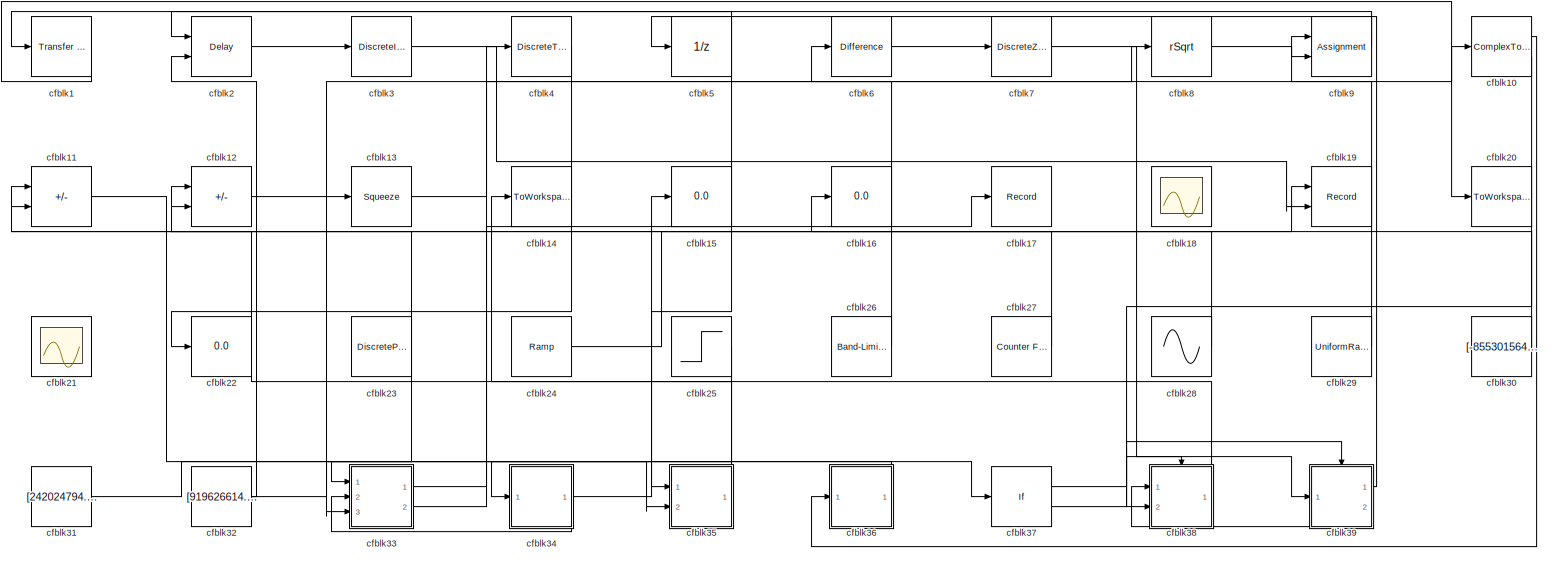
[diagram: root canvas - part 1/1, most of the canvas]
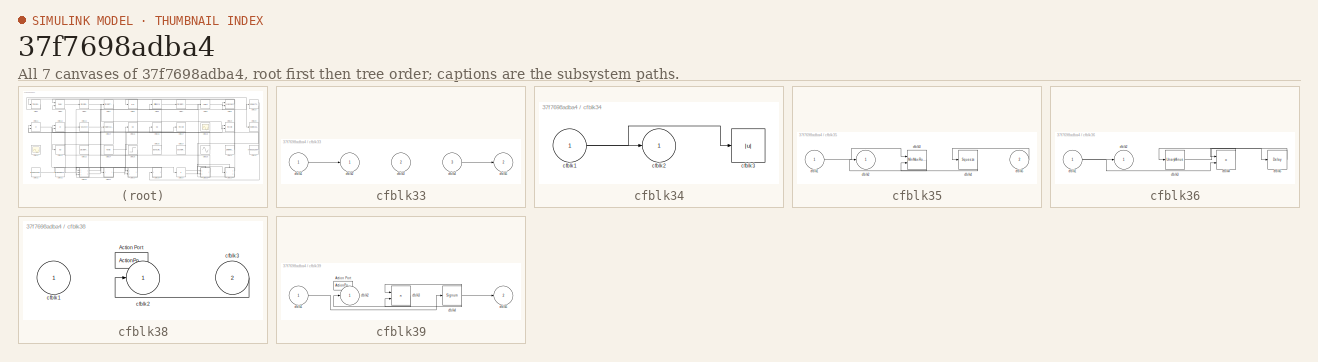
[diagram: thumbnail index - all 7 canvases of the model, root first then tree order]
MODEL slx_37f7698adba4
KIND model
CONFIG AbsTol = auto
CONFIG EnableMultiTasking = off
CONFIG FixedStep = auto
CONFIG MaxStep = auto
CONFIG MinStep = auto
CONFIG RelTol = 1e-3
CONFIG SampleTimeConstraint = Unconstrained
CONFIG SolverName = VariableStepAuto
CONFIG StartTime = 0.0
CONFIG StopTime = 10.0
BLOCK [Reference] cfblk1  REF=simulink/Discrete/Transfer Fcn
Real Zero
  Ports = [1, 1]
  SourceBlock = simulink/Discrete/Transfer Fcn\nReal Zero
  SourceProductBaseCode = SL
  SourceType = Transfer Fcn Real Zero
BLOCK [ComplexToRealImag] cfblk10
  Ports = [1, 2]
BLOCK [Sum] cfblk11
  IconShape = rectangular
  Inputs = -+
  Ports = [2, 1]
BLOCK [Sum] cfblk12
  IconShape = rectangular
  Inputs = +-
  Ports = [2, 1]
BLOCK [Squeeze] cfblk13
BLOCK [ToWorkspace] cfblk14
  FixptAsFi = on
  MaxDataPoints = inf
  Ports = [1]
  SampleTime = -1
  SaveFormat = Timeseries
  VariableName = gdzipip
BLOCK [Display] cfblk15
  Decimation = 1
  Ports = [1]
BLOCK [Display] cfblk16
  Decimation = 1
  Ports = [1]
BLOCK [Record] cfblk17
  FileSettingsInternal = {"entries":[{"content":{"excelSettings":{"content":{},"type":"Streamout.ExcelSettings"}},"type":"Streamout.FileSettingStorage","uuid":"e0210236-c923-4f10-9e11-b856d1107aa3"}],"packageUris":["http://schema.mathworks.com/mf0/streamout_blocks/R2020a"],"version":"1.0"}
  Ports = [1]
  SignalsInternal = {"entries":[{"content":{"signals":[{"content":{"blockPath":["sampleModel120/cfblk17"],"channel":[],"dimensions":[1],"domain":"sampleModel120/cfblk17","lineColor":"#7e2f8e","plots":[1],"port":1,"sid":[""],"signalID":4200,"signalName":"cfblk33:2"},"type":"RecordBlkView.Signal","uuid":"89cdf700-71f4-44c4-b849-b03ae17e177f"}]},"type":"RecordBlkView.InputSignals","uuid":"d4e2e50f-ae13-4356-993b-0258d38...<+99ch>
  VisualizationBindings = {"sparklinesplugin":{"info":[{"bindingParametersList":[],"subplotID":1}]}}
BLOCK [Scope] cfblk18
  Floating = on
  NumInputPorts = 1
  Ports = []
BLOCK [Record] cfblk19
  CompatibilityTag = XY
  FileSettingsInternal = {"entries":[{"content":{"excelSettings":{"content":{},"type":"Streamout.ExcelSettings"}},"type":"Streamout.FileSettingStorage","uuid":"8366a3cd-7951-4da1-9c24-9775e92245a2"}],"packageUris":["http://schema.mathworks.com/mf0/streamout_blocks/R2020a"],"version":"1.0"}
  Layout = [1 1]
  Ports = [2]
  SignalsInternal = {"entries":[{"content":{"signals":[{"content":{"blockPath":["sampleModel120/cfblk19"],"channel":[],"dimensions":[1],"domain":"sampleModel120/cfblk19","lineColor":"#a2142f","plots":[1],"port":1,"sid":[""],"signalID":4204,"signalName":"cfblk24"},"type":"RecordBlkView.Signal","uuid":"4cfc79fe-18ae-4409-b2c0-2dcb3a73f501"},{"content":{"blockPath":["sampleModel120/cfblk19"],"channel":[],"dimensions":[1...<+382ch>
  VisualizationBindings = {"xyplotplugin":{"info":[{"series":[{"bindingParametersList":[{"parameter":"X-Axis","signalID":4204,"signalName":"cfblk24"},{"parameter":"Y-Axis","signalID":4208,"signalName":"cfblk3"}],"seriesID":44654}],"subplotID":1}]}}
BLOCK [Delay] cfblk2
  InputPortMap = u0,e6
  Ports = [2, 1]
  SampleTime = 1
  ShowEnablePort = on
BLOCK [ToWorkspace] cfblk20
  FixptAsFi = on
  MaxDataPoints = inf
  Ports = [1]
  SampleTime = -1
  SaveFormat = Timeseries
  VariableName = nldwkbo
BLOCK [Scope] cfblk21
  Floating = on
  NumInputPorts = 1
  Ports = []
BLOCK [Display] cfblk22
  Decimation = 1
  Ports = [1]
BLOCK [DiscretePulseGenerator] cfblk23
  Amplitude = [-795414490.972023]
  Period = [15601255.876719]
  PhaseDelay = [5.000000]
  Ports = [0, 1]
  PulseType = Time based
  PulseWidth = 5
BLOCK [Reference] cfblk24  REF=simulink/Sources/Ramp
  Ports = [0, 1]
  SourceBlock = simulink/Sources/Ramp
  SourceProductBaseCode = SL
  SourceType = Ramp
BLOCK [Step] cfblk25
  After = [-717190819.367420]
  Before = [-205313429.833590]
  SampleTime = 0
  Time = [11.000000]
BLOCK [Reference] cfblk26  REF=simulink/Sources/Band-Limited
White Noise
  Ports = [0, 1]
  SourceBlock = simulink/Sources/Band-Limited\nWhite Noise
  SourceProductBaseCode = SL
  SourceType = Band-Limited White Noise.
BLOCK [Reference] cfblk27  REF=simulink/Sources/Counter
Free-Running
  Ports = [0, 1]
  SourceBlock = simulink/Sources/Counter\nFree-Running
  SourceProductBaseCode = SL
  SourceType = Counter Free-Running
BLOCK [Sin] cfblk28
  Amplitude = [156276289.097491]
  Bias = [62004617.987088]
  Ports = [0, 1]
  SampleTime = 0
BLOCK [UniformRandomNumber] cfblk29
  Maximum = [2305310778.897584]
  Minimum = [-6667408591.222454]
  SampleTime = 0.1
  Seed = [44039106.000000]
BLOCK [DiscreteIntegrator] cfblk3
  ICPrevOutput = DiscIntNeverNeededParam
  ICPrevScaledInput = DiscIntNeverNeededParam
  InitialConditionSetting = Auto
  Ports = [1, 1]
BLOCK [Constant] cfblk30
  SampleTime = 1
  Value = [-855301564.582844]
BLOCK [Constant] cfblk31
  SampleTime = 1
  Value = [242024794.838903]
BLOCK [Constant] cfblk32
  SampleTime = 1
  Value = [919626614.791547]
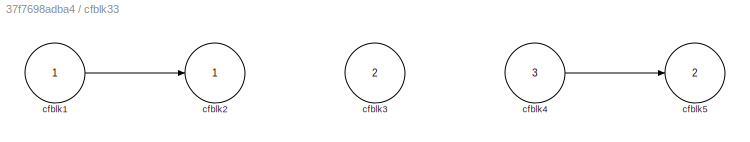
BLOCK [SubSystem] cfblk33
  Ports = [3, 2]
  RequestExecContextInheritance = off
BLOCK [Inport] cfblk33/cfblk1
BLOCK [Outport] cfblk33/cfblk2
BLOCK [Inport] cfblk33/cfblk3
  Port = 2
BLOCK [Inport] cfblk33/cfblk4
  Port = 3
BLOCK [Outport] cfblk33/cfblk5
  Port = 2
BLOCK [SubSystem] cfblk34
  Ports = [1, 1]
  RequestExecContextInheritance = off
BLOCK [Inport] cfblk34/cfblk1
BLOCK [Outport] cfblk34/cfblk2
BLOCK [Abs] cfblk34/cfblk3
  SaturateOnIntegerOverflow = off
BLOCK [SubSystem] cfblk35
  Ports = [2, 1]
  RequestExecContextInheritance = off
BLOCK [Inport] cfblk35/cfblk1
BLOCK [Outport] cfblk35/cfblk2
BLOCK [Reference] cfblk35/cfblk3  REF=simulink/Math
Operations/MinMax
Running
Resettable
  Ports = [2, 1]
  SourceBlock = simulink/Math\nOperations/MinMax\nRunning\nResettable
  SourceProductBaseCode = SL
  SourceType = MinMax Running Resettable
BLOCK [Squeeze] cfblk35/cfblk4
BLOCK [Inport] cfblk35/cfblk5
  Port = 2
BLOCK [SubSystem] cfblk36
  Ports = [1, 1]
  RequestExecContextInheritance = off
BLOCK [Inport] cfblk36/cfblk1
BLOCK [Outport] cfblk36/cfblk2
BLOCK [UnaryMinus] cfblk36/cfblk3
BLOCK [Product] cfblk36/cfblk4
  Ports = [2, 1]
BLOCK [Delay] cfblk36/cfblk5
  InputPortMap = u0
  Ports = [1, 1]
  SampleTime = 1
BLOCK [If] cfblk37
  IfExpression = u1 >= 0
  Ports = [1, 2]
  SampleTime = 1
BLOCK [SubSystem] cfblk38
  Ports = [2, 1, 0, 0, 0, 0, 0, 1]
  RequestExecContextInheritance = off
  TreatAsAtomicUnit = on
BLOCK [ActionPort] cfblk38/Action Port
  ActionPortLabel = if(u1 >= 0)
BLOCK [Inport] cfblk38/cfblk1
BLOCK [Outport] cfblk38/cfblk2
BLOCK [Inport] cfblk38/cfblk3
  Port = 2
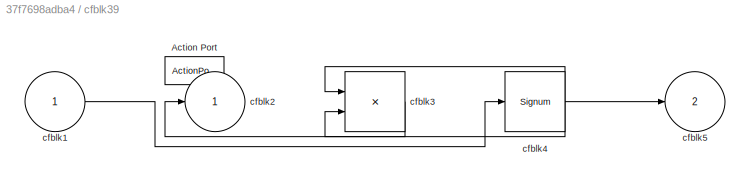
BLOCK [SubSystem] cfblk39
  Ports = [1, 2, 0, 0, 0, 0, 0, 1]
  RequestExecContextInheritance = off
  TreatAsAtomicUnit = on
BLOCK [ActionPort] cfblk39/Action Port
  ActionPortLabel = else
BLOCK [Inport] cfblk39/cfblk1
BLOCK [Outport] cfblk39/cfblk2
BLOCK [Product] cfblk39/cfblk3
  Inputs = **
  Ports = [2, 1]
BLOCK [Signum] cfblk39/cfblk4
BLOCK [Outport] cfblk39/cfblk5
  Port = 2
BLOCK [DiscreteTransferFcn] cfblk4
  InputPortMap = u0
  Ports = [1, 1]
  SampleTime = 1
BLOCK [UnitDelay] cfblk5
  HasFrameUpgradeWarning = on
BLOCK [Reference] cfblk6  REF=simulink/Discrete/Difference
  Ports = [1, 1]
  SourceBlock = simulink/Discrete/Difference
  SourceProductBaseCode = SL
  SourceType = Difference
BLOCK [DiscreteZeroPole] cfblk7
  Gain = 1
  Poles = [0 0.5]
BLOCK [Sqrt] cfblk8
  AlgorithmType = Newton-Raphson
  Operator = rSqrt
BLOCK [Assignment] cfblk9
  DiagnosticForDimensions = Warning
  IndexOptions = Index vector (dialog)
  Indices = 1
  OutputSizes = 1
  Ports = [2, 1]
LINE cfblk10:1 -> cfblk36:1
LINE cfblk10:2 -> cfblk38:2
LINE cfblk11:1 -> cfblk35:2
LINE cfblk12:1 -> cfblk13:1
LINE cfblk13:1 -> cfblk8:1
LINE cfblk1:1 -> cfblk20:1
NET cfblk23:1 -> cfblk11:1, cfblk33:3
LINE cfblk24:1 -> cfblk19:1
LINE cfblk25:1 -> cfblk34:1
LINE cfblk26:1 -> cfblk6:1
LINE cfblk27:1 -> cfblk16:1
LINE cfblk28:1 -> cfblk11:2
LINE cfblk29:1 -> cfblk9:1
LINE cfblk2:1 -> cfblk3:1
LINE cfblk30:1 -> cfblk12:1
LINE cfblk31:1 -> cfblk37:1
NET cfblk32:1 -> cfblk10:1, cfblk2:2
LINE cfblk33/cfblk1:1 -> cfblk33/cfblk2:1
LINE cfblk33/cfblk4:1 -> cfblk33/cfblk5:1
LINE cfblk33:1 -> cfblk4:1
LINE cfblk33:2 -> cfblk17:1
NET cfblk34/cfblk1:1 -> cfblk34/cfblk2:1, cfblk34/cfblk3:1
NET cfblk34:1 -> cfblk15:1, cfblk33:2
LINE cfblk35/cfblk1:1 -> cfblk35/cfblk3:1
LINE cfblk35/cfblk3:1 -> cfblk35/cfblk2:1
LINE cfblk35/cfblk4:1 -> cfblk35/cfblk3:2
LINE cfblk35/cfblk5:1 -> cfblk35/cfblk4:1
LINE cfblk35:1 -> cfblk12:2
NET cfblk36/cfblk1:1 -> cfblk36/cfblk2:1, cfblk36/cfblk4:2
LINE cfblk36/cfblk3:1 -> cfblk36/cfblk5:1
LINE cfblk36/cfblk4:1 -> cfblk36/cfblk3:1
LINE cfblk36/cfblk5:1 -> cfblk36/cfblk4:1
LINE cfblk36:1 -> cfblk33:1
LINE cfblk37:1 -> cfblk38:ifaction
LINE cfblk37:2 -> cfblk39:ifaction
LINE cfblk38/cfblk3:1 -> cfblk38/cfblk2:1
LINE cfblk38:1 -> cfblk14:1
LINE cfblk39/cfblk1:1 -> cfblk39/cfblk4:1
LINE cfblk39/cfblk3:1 -> cfblk39/cfblk2:1
NET cfblk39/cfblk4:1 -> cfblk39/cfblk3:1, cfblk39/cfblk3:2, cfblk39/cfblk5:1
LINE cfblk39:1 -> cfblk5:1
LINE cfblk39:2 -> cfblk38:1
LINE cfblk3:1 -> cfblk19:2
LINE cfblk4:1 -> cfblk22:1
NET cfblk5:1 -> cfblk2:1, cfblk35:1
LINE cfblk6:1 -> cfblk7:1
LINE cfblk7:1 -> cfblk39:1
LINE cfblk8:1 -> cfblk9:2
LINE cfblk9:1 -> cfblk1:1
note: NET lines group one-source signal fan-out (src -> all destinations, sorted); 1:1 wires keep LINE
